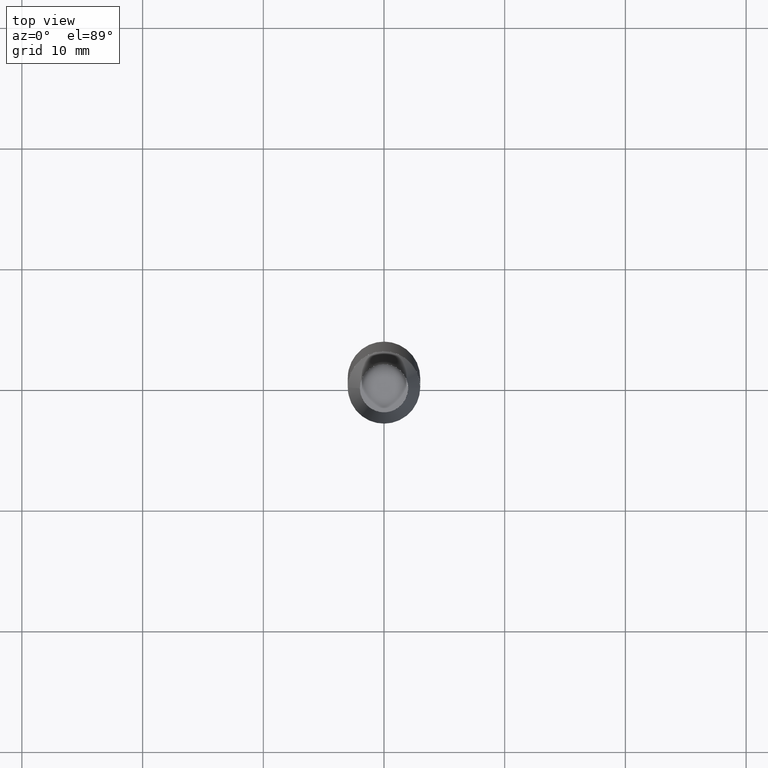
[diagram: clean part render]
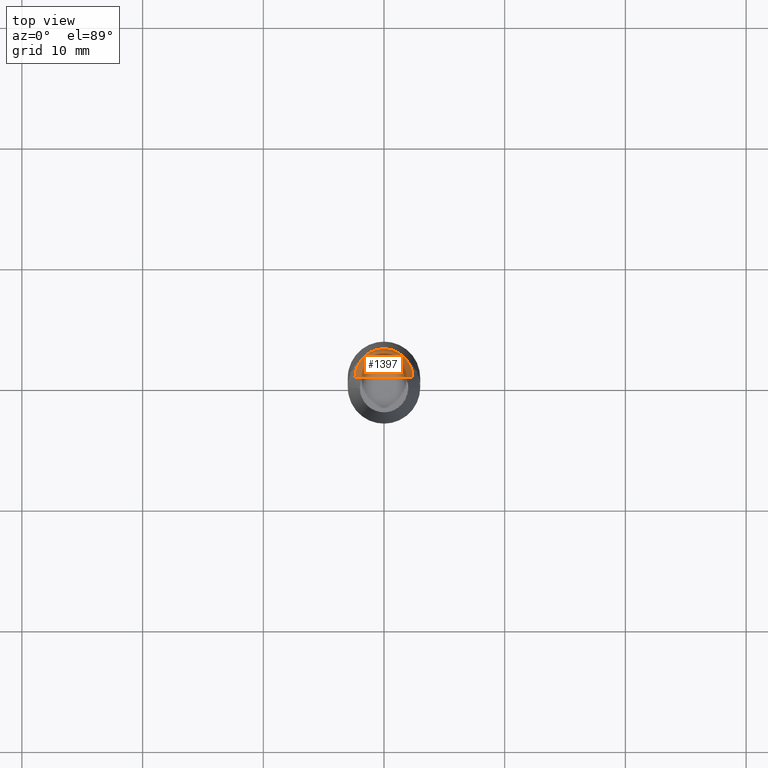
[diagram: same view with one face highlighted and labeled with its STEP entity id]
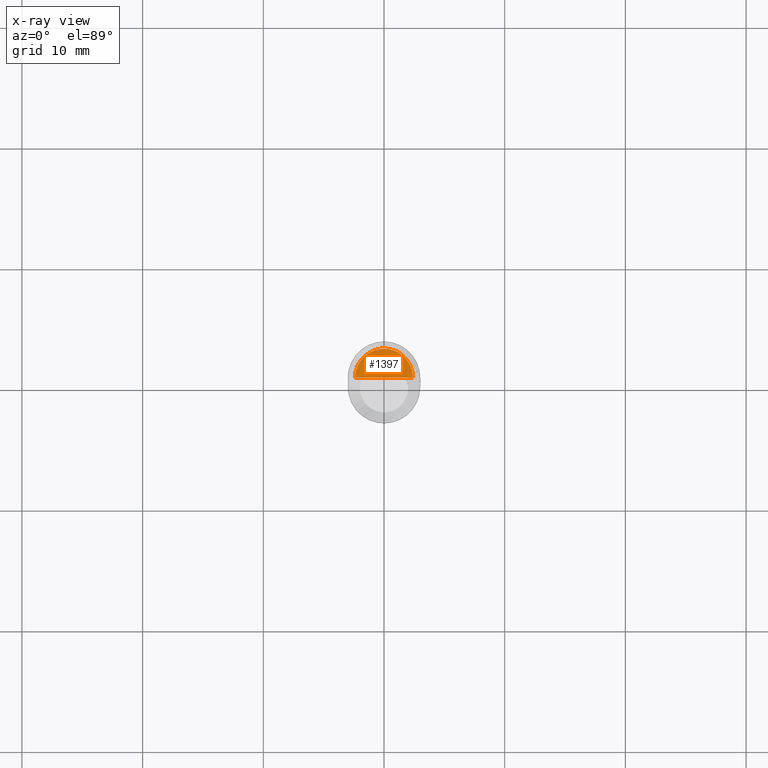
[diagram: x-ray of the same camera — body ghosted, the highlighted face saturated]
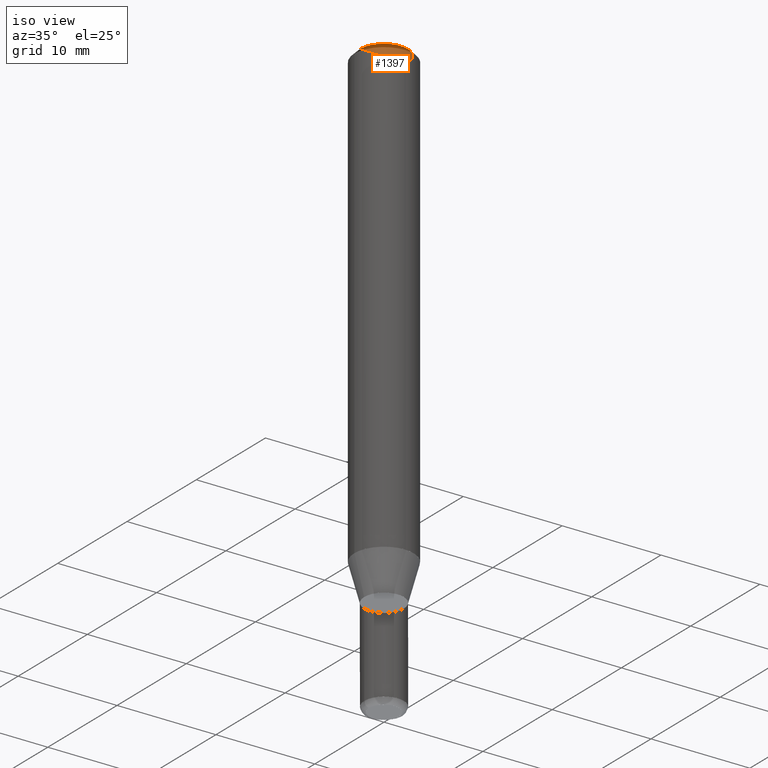
[diagram: same view with one face highlighted and labeled with its STEP entity id]
A machine part, top view. The second image highlights one B-rep face of the part: STEP entity #1397.
The next image is the same camera in x-ray: the body ghosted, the highlighted face saturated — about 0% of this face is hidden behind the body in this view.
A second angle (iso view) of the same face is appended — the face is thin or edge-on in the first view.
In plain terms, the highlighted face is a freeform B-spline surface patch.
Its self-contained STEP definition (entity closure, byte-faithful):
#1134=CARTESIAN_POINT('',(2.4,0.0,46.267949192431));
#1135=CARTESIAN_POINT('',(2.4,2.4,46.267949192431));
#1136=CARTESIAN_POINT('',(0.0,2.4,46.267949192431));
#1137=CARTESIAN_POINT('',(-2.4,2.4,46.267949192431));
#1138=CARTESIAN_POINT('',(-2.4,0.0,46.267949192431));
#1139=CARTESIAN_POINT('',(0.0,0.0,46.267949192431));
#1382=(
BOUNDED_SURFACE()
B_SPLINE_SURFACE(1,2,(
(#1134,#1135,#1136,#1137,#1138),
(#1139,#1139,#1139,#1139,#1139)
), .UNSPECIFIED.,.F.,.F.,.F.)
B_SPLINE_SURFACE_WITH_KNOTS((2,2),(3,2,3),(
0.0,1.0),(
0.0,0.5,1.0), .UNSPECIFIED.)
GEOMETRIC_REPRESENTATION_ITEM()
RATIONAL_B_SPLINE_SURFACE(((1.0,0.707106781187,1.0,0.707106781187,1.0),
(1.0,0.707106781187,1.0,0.707106781187,1.0)
))
REPRESENTATION_ITEM('')
SURFACE()
);
#1383=(
BOUNDED_CURVE()
B_SPLINE_CURVE(1,(#1139,#1134),.UNSPECIFIED.,.F.,.F.)
B_SPLINE_CURVE_WITH_KNOTS((2,2),
(0.0,1.0),.UNSPECIFIED.)
CURVE()
GEOMETRIC_REPRESENTATION_ITEM()
RATIONAL_B_SPLINE_CURVE((1.0,1.0))
REPRESENTATION_ITEM('')
);
#1384=(
BOUNDED_CURVE()
B_SPLINE_CURVE(2,(#1134,#1135,#1136,#1137,#1138),.UNSPECIFIED.,.F.,.F.)
B_SPLINE_CURVE_WITH_KNOTS((3,2,3),
(0.0,0.5,1.0),.UNSPECIFIED.)
CURVE()
GEOMETRIC_REPRESENTATION_ITEM()
RATIONAL_B_SPLINE_CURVE((1.0,0.707106781187,1.0,0.707106781187,1.0))
REPRESENTATION_ITEM('')
);
#1385=(
BOUNDED_CURVE()
B_SPLINE_CURVE(1,(#1138,#1139),.UNSPECIFIED.,.F.,.F.)
B_SPLINE_CURVE_WITH_KNOTS((2,2),
(0.0,1.0),.UNSPECIFIED.)
CURVE()
GEOMETRIC_REPRESENTATION_ITEM()
RATIONAL_B_SPLINE_CURVE((1.0,1.0))
REPRESENTATION_ITEM('')
);
#1386=VERTEX_POINT('',#1134);
#1387=VERTEX_POINT('',#1138);
#1388=VERTEX_POINT('',#1139);
#1389=EDGE_CURVE('',#1388,#1386,#1383,.T.);
#1390=EDGE_CURVE('',#1386,#1387,#1384,.T.);
#1391=EDGE_CURVE('',#1387,#1388,#1385,.T.);
#1392=ORIENTED_EDGE('',*,*,#1389,.T.);
#1393=ORIENTED_EDGE('',*,*,#1390,.T.);
#1394=ORIENTED_EDGE('',*,*,#1391,.T.);
#1395=EDGE_LOOP('',(#1392,#1393,#1394));
#1396=FACE_OUTER_BOUND('',#1395,.T.);
#1397=ADVANCED_FACE('',(#1396),#1382,.T.);